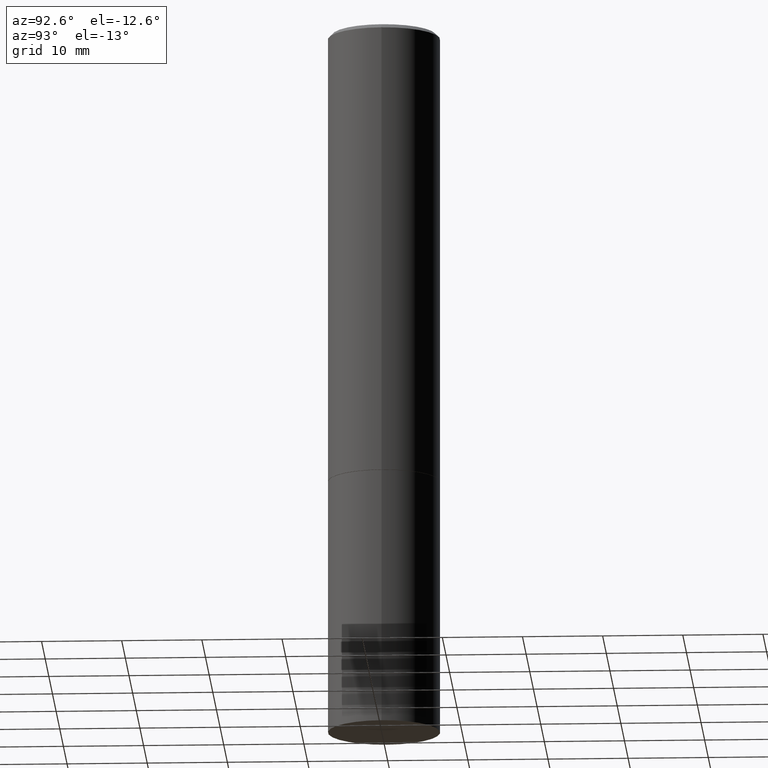
[diagram: clean part render]
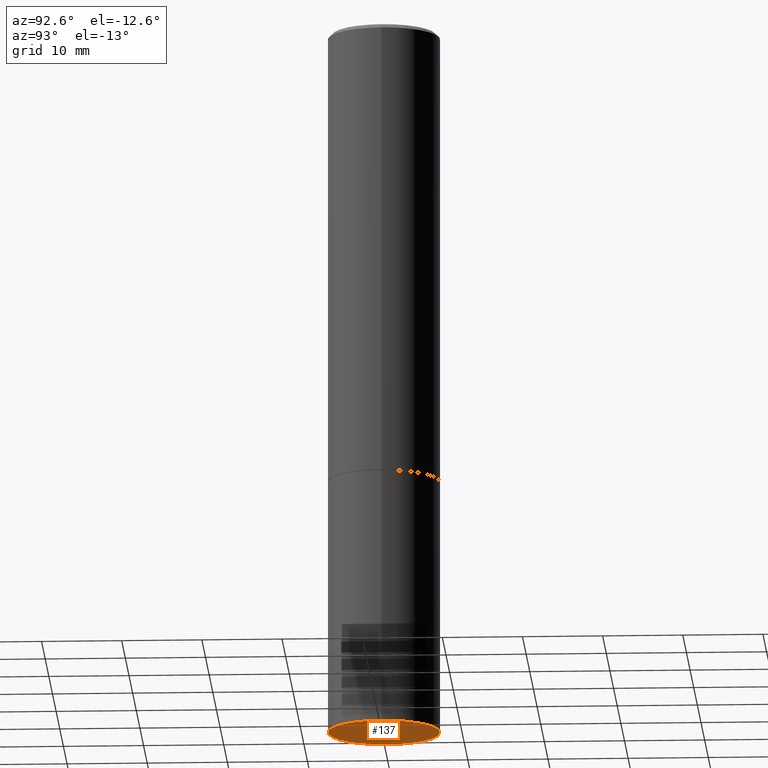
[diagram: same view with one face highlighted and labeled with its STEP entity id]
A machine part, auxiliary view. The second image highlights one B-rep face of the part: STEP entity #137.
In plain terms, the highlighted planar face has unit normal (0, -0, -1).
Its self-contained STEP definition (entity closure, byte-faithful):
#27 = AXIS2_PLACEMENT_3D ( 'NONE', #246, #148, #87 ) ;
#29 = CARTESIAN_POINT ( 'NONE',  ( 1.924504513970420545E-15, 0.2755999999999877992, -3.503900000000000681 ) ) ;
#39 = EDGE_CURVE ( 'NONE', #295, #97, #199, .T. ) ;
#45 = EDGE_LOOP ( 'NONE', ( #221, #329 ) ) ;
#50 = CARTESIAN_POINT ( 'NONE',  ( 8.568678149992099474E-29, -1.223380146317249786E-14, -3.503899999999999793 ) ) ;
#54 = PLANE ( 'NONE',  #215 ) ;
#55 = CARTESIAN_POINT ( 'NONE',  ( -0.2756000000000000116, -8.076261588080363510E-15, -3.503899999999999793 ) ) ;
#84 = DIRECTION ( 'NONE',  ( 2.438088387897960049E-29, -3.491481338843145188E-15, -1.000000000000000000 ) ) ;
#87 = DIRECTION ( 'NONE',  ( 1.000000000000000000, -6.982962677686265922E-15, 0.000000000000000000 ) ) ;
#93 = CIRCLE ( 'NONE', #321, 0.2756000000000000116 ) ;
#97 = VERTEX_POINT ( 'NONE', #271 ) ;
#137 = ADVANCED_FACE ( 'NONE', ( #140 ), #54, .T. ) ;
#140 = FACE_OUTER_BOUND ( 'NONE', #45, .T. ) ;
#148 = DIRECTION ( 'NONE',  ( -2.445468806185136597E-29, 3.491481338843145583E-15, 1.000000000000000000 ) ) ;
#171 = DIRECTION ( 'NONE',  ( -1.000000000000000000, 6.982962677686265922E-15, -4.876176775795935793E-29 ) ) ;
#199 = CIRCLE ( 'NONE', #27, 0.2756000000000000116 ) ;
#201 = DIRECTION ( 'NONE',  ( -2.445468806185136597E-29, 3.491481338843145583E-15, 1.000000000000000000 ) ) ;
#215 = AXIS2_PLACEMENT_3D ( 'NONE', #29, #84, #171 ) ;
#221 = ORIENTED_EDGE ( 'NONE', *, *, #277, .F. ) ;
#246 = CARTESIAN_POINT ( 'NONE',  ( 8.568678149992099474E-29, -1.223380146317249786E-14, -3.503899999999999793 ) ) ;
#271 = CARTESIAN_POINT ( 'NONE',  ( 0.2756000000000000116, -1.415830597714283281E-14, -3.503899999999999793 ) ) ;
#277 = EDGE_CURVE ( 'NONE', #97, #295, #93, .T. ) ;
#295 = VERTEX_POINT ( 'NONE', #55 ) ;
#315 = DIRECTION ( 'NONE',  ( 1.000000000000000000, -6.982962677686265922E-15, 0.000000000000000000 ) ) ;
#321 = AXIS2_PLACEMENT_3D ( 'NONE', #50, #201, #315 ) ;
#329 = ORIENTED_EDGE ( 'NONE', *, *, #39, .F. ) ;